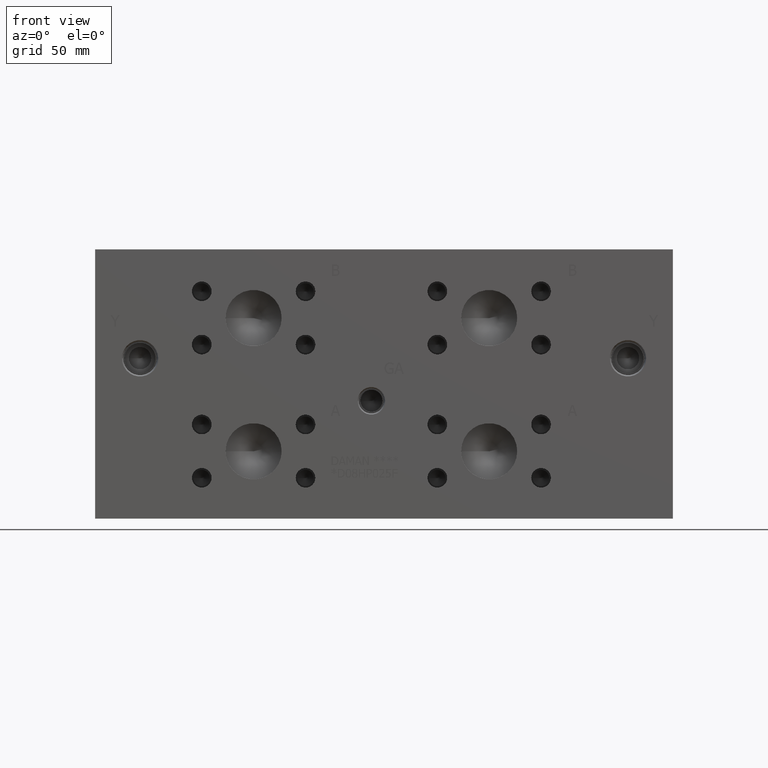
[diagram: clean part render]
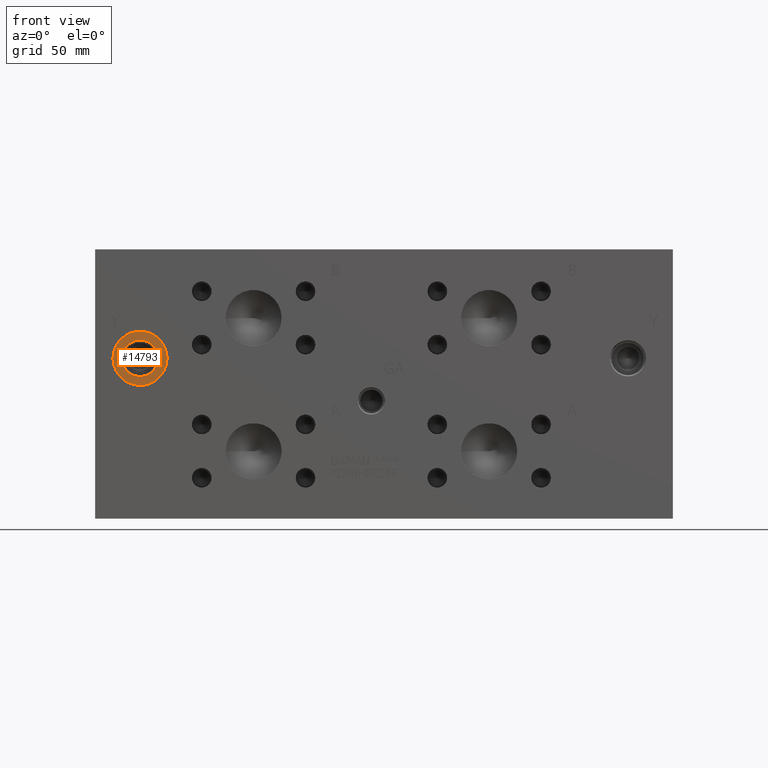
[diagram: same view with one face highlighted and labeled with its STEP entity id]
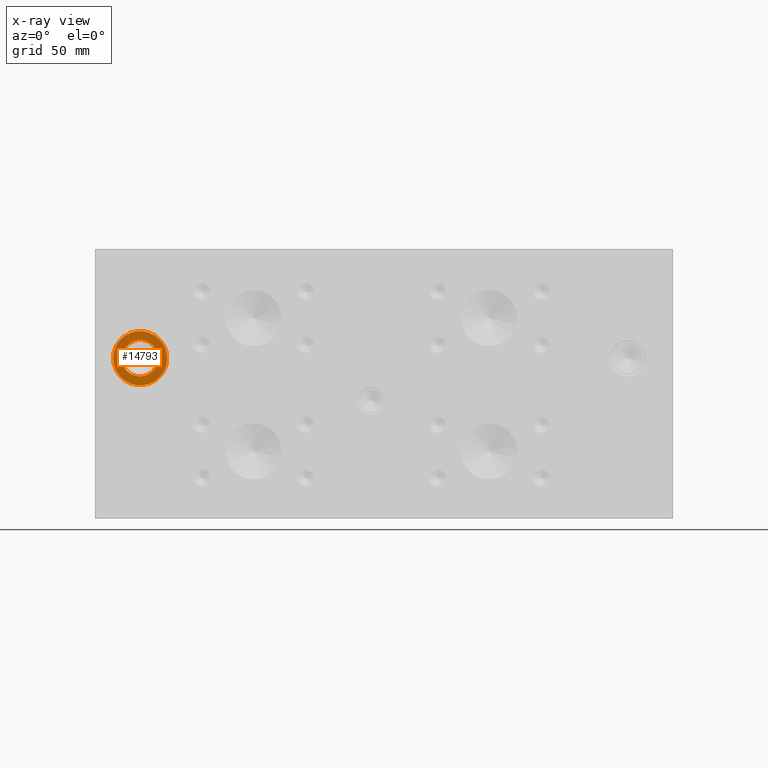
[diagram: x-ray of the same camera — body ghosted, the highlighted face saturated]
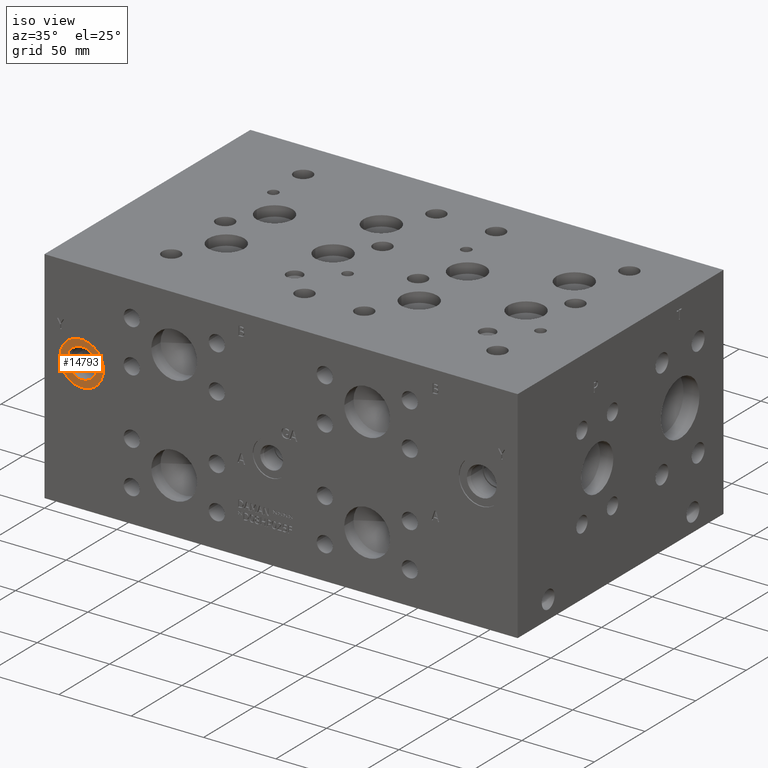
[diagram: same view with one face highlighted and labeled with its STEP entity id]
A machine part, front view. The second image highlights one B-rep face of the part: STEP entity #14793.
The next image is the same camera in x-ray: the body ghosted, the highlighted face saturated — about 0% of this face is hidden behind the body in this view.
A second angle (iso view) of the same face is appended — the face is thin or edge-on in the first view.
In plain terms, the highlighted planar face has unit normal (0, 1, 0).
Its self-contained STEP definition (entity closure, byte-faithful):
#474=CIRCLE('',#15678,15.3162);
#475=CIRCLE('',#15679,15.3162);
#476=CIRCLE('',#15681,10.2997);
#477=CIRCLE('',#15682,10.2997);
#831=FACE_BOUND('',#2813,.T.);
#1264=PLANE('',#15680);
#1916=FACE_OUTER_BOUND('',#2812,.T.);
#2812=EDGE_LOOP('',(#12754,#12755));
#2813=EDGE_LOOP('',(#12756,#12757));
#7073=VERTEX_POINT('',#25006);
#7074=VERTEX_POINT('',#25008);
#7075=VERTEX_POINT('',#25012);
#7076=VERTEX_POINT('',#25013);
#9055=EDGE_CURVE('',#7073,#7074,#474,.T.);
#9056=EDGE_CURVE('',#7074,#7073,#475,.T.);
#9057=EDGE_CURVE('',#7075,#7076,#476,.T.);
#9058=EDGE_CURVE('',#7076,#7075,#477,.T.);
#12754=ORIENTED_EDGE('',*,*,#9056,.F.);
#12755=ORIENTED_EDGE('',*,*,#9055,.F.);
#12756=ORIENTED_EDGE('',*,*,#9057,.T.);
#12757=ORIENTED_EDGE('',*,*,#9058,.T.);
#14793=ADVANCED_FACE('',(#1916,#831),#1264,.F.);
#15678=AXIS2_PLACEMENT_3D('',#25009,#18657,#18658);
#15679=AXIS2_PLACEMENT_3D('',#25010,#18659,#18660);
#15680=AXIS2_PLACEMENT_3D('',#25011,#18661,#18662);
#15681=AXIS2_PLACEMENT_3D('',#25014,#18663,#18664);
#15682=AXIS2_PLACEMENT_3D('',#25015,#18665,#18666);
#18657=DIRECTION('center_axis',(0.,1.,0.));
#18658=DIRECTION('ref_axis',(1.,0.,0.));
#18659=DIRECTION('center_axis',(0.,1.,0.));
#18660=DIRECTION('ref_axis',(1.,0.,0.));
#18661=DIRECTION('center_axis',(0.,1.,0.));
#18662=DIRECTION('ref_axis',(0.,0.,1.));
#18663=DIRECTION('center_axis',(0.,1.,0.));
#18664=DIRECTION('ref_axis',(1.,0.,0.));
#18665=DIRECTION('center_axis',(0.,1.,0.));
#18666=DIRECTION('ref_axis',(1.,0.,0.));
#25006=CARTESIAN_POINT('',(10.0838,0.7874,90.7542));
#25008=CARTESIAN_POINT('',(40.7162,0.7874,90.7542));
#25009=CARTESIAN_POINT('Origin',(25.4,0.7874,90.7542));
#25010=CARTESIAN_POINT('Origin',(25.4,0.7874,90.7542));
#25011=CARTESIAN_POINT('Origin',(35.6997,0.7874,90.7542));
#25012=CARTESIAN_POINT('',(35.6997,0.7874,90.7542));
#25013=CARTESIAN_POINT('',(15.1003,0.7874,90.7542));
#25014=CARTESIAN_POINT('Origin',(25.4,0.7874,90.7542));
#25015=CARTESIAN_POINT('Origin',(25.4,0.7874,90.7542));